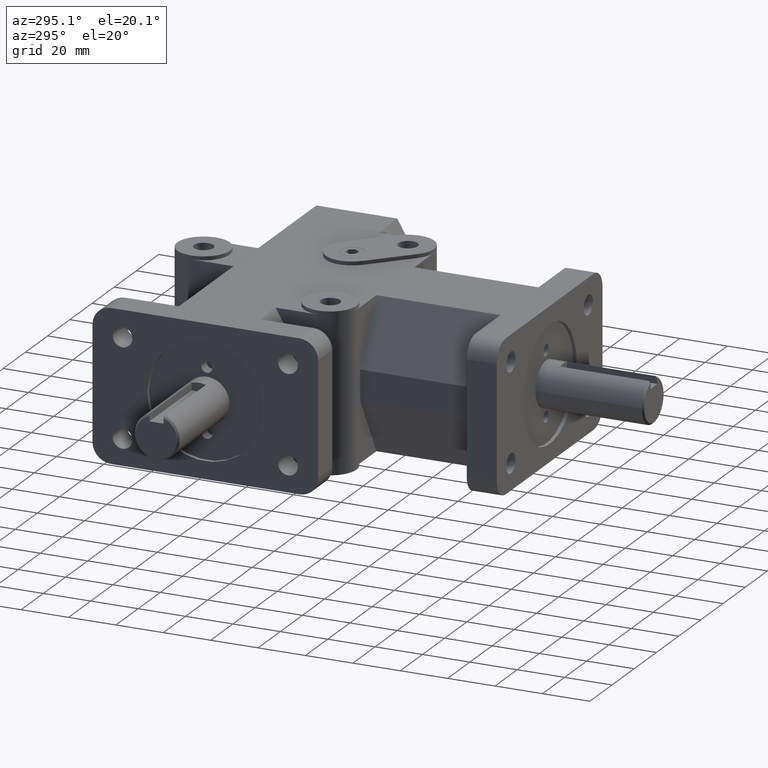
[diagram: clean part render]
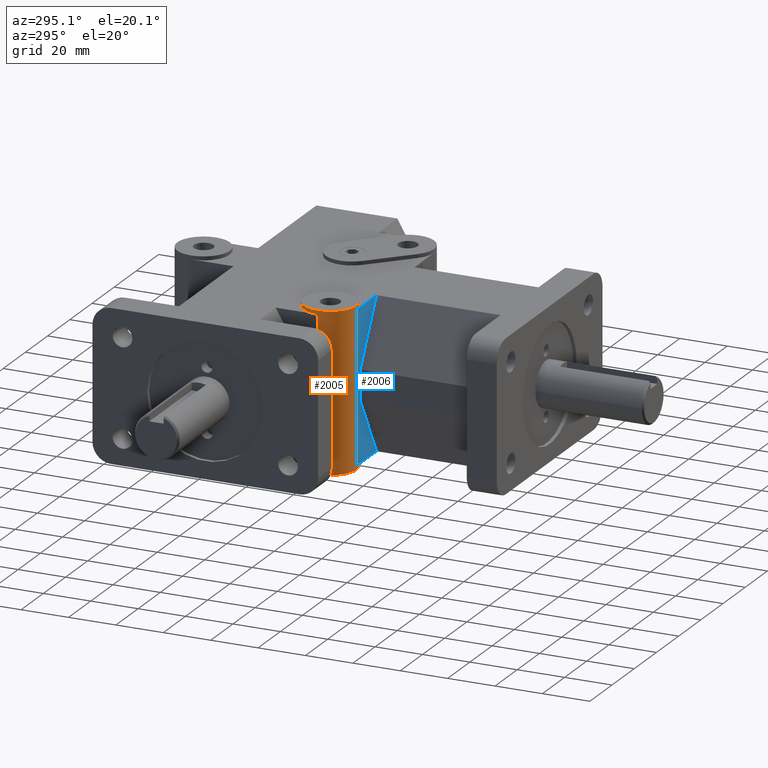
[diagram: same view with the hole feature highlighted: cylindrical wall and planar end face, labeled with their STEP entity ids]
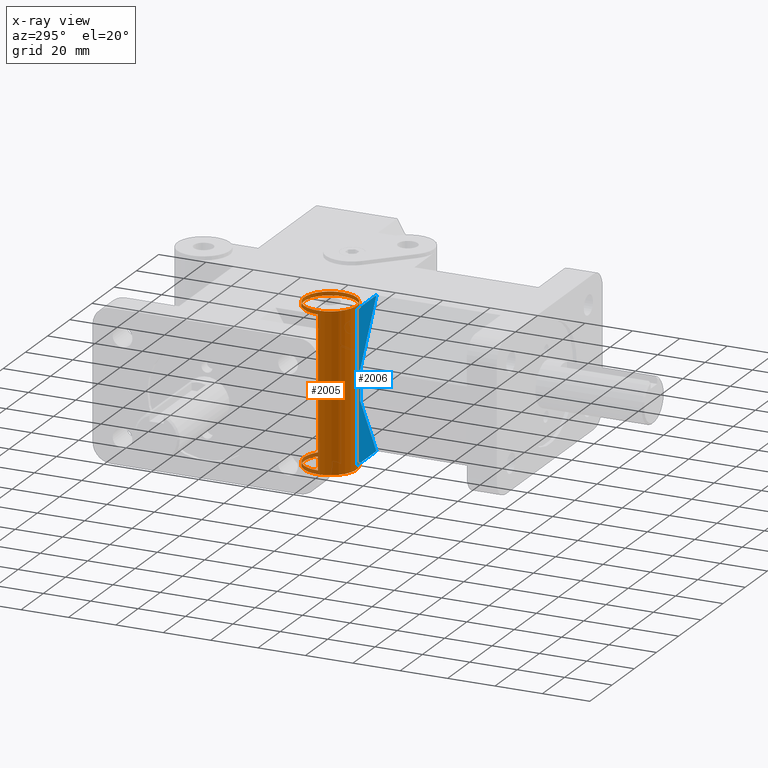
[diagram: x-ray of the same camera — body ghosted, the hole faces saturated]
A machine part, auxiliary view. The highlighted faces form one hole feature of diameter 22.225 mm: the cylindrical wall (entity #2005, orange) and its adjacent planar end face (entity #2006, blue) — they share a circular edge in the B-rep.
The next image is the same camera in x-ray (body ghosted, the hole faces saturated) — the bore reads through the body.
Wall:
#223=FACE_OUTER_BOUND('',#364,.T.);
#364=EDGE_LOOP('',(#1806,#1807,#1808,#1809,#1810,#1811,#1812,#1813,#1814,
#1815));
#565=LINE('',#3371,#756);
#566=LINE('',#3373,#757);
#567=LINE('',#3374,#758);
#568=LINE('',#3375,#759);
#756=VECTOR('',#2771,1.);
#757=VECTOR('',#2774,11.1125);
#758=VECTOR('',#2775,1.);
#759=VECTOR('',#2776,11.1125);
#820=CIRCLE('',#2126,11.1125);
#823=CIRCLE('',#2131,11.1125);
#844=CIRCLE('',#2181,11.1125);
#845=CIRCLE('',#2183,11.1125);
#952=VERTEX_POINT('',#3090);
#953=VERTEX_POINT('',#3092);
#963=VERTEX_POINT('',#3117);
#964=VERTEX_POINT('',#3119);
#1015=VERTEX_POINT('',#3280);
#1016=VERTEX_POINT('',#3283);
#1167=EDGE_CURVE('',#952,#953,#820,.T.);
#1181=EDGE_CURVE('',#963,#964,#823,.T.);
#1262=EDGE_CURVE('',#1015,#1015,#844,.T.);
#1263=EDGE_CURVE('',#1016,#1016,#845,.T.);
#1306=EDGE_CURVE('',#952,#964,#565,.T.);
#1307=EDGE_CURVE('',#1016,#964,#566,.T.);
#1308=EDGE_CURVE('',#953,#963,#567,.T.);
#1309=EDGE_CURVE('',#952,#1015,#568,.T.);
#1806=ORIENTED_EDGE('',*,*,#1263,.T.);
#1807=ORIENTED_EDGE('',*,*,#1307,.T.);
#1808=ORIENTED_EDGE('',*,*,#1181,.F.);
#1809=ORIENTED_EDGE('',*,*,#1308,.F.);
#1810=ORIENTED_EDGE('',*,*,#1167,.F.);
#1811=ORIENTED_EDGE('',*,*,#1309,.T.);
#1812=ORIENTED_EDGE('',*,*,#1262,.T.);
#1813=ORIENTED_EDGE('',*,*,#1309,.F.);
#1814=ORIENTED_EDGE('',*,*,#1306,.T.);
#1815=ORIENTED_EDGE('',*,*,#1307,.F.);
#1910=CYLINDRICAL_SURFACE('',#2214,11.1125);
#2005=ADVANCED_FACE('',(#223),#1910,.T.);
#2126=AXIS2_PLACEMENT_3D('',#3093,#2487,#2488);
#2131=AXIS2_PLACEMENT_3D('',#3120,#2508,#2509);
#2181=AXIS2_PLACEMENT_3D('',#3281,#2668,#2669);
#2183=AXIS2_PLACEMENT_3D('',#3284,#2672,#2673);
#2214=AXIS2_PLACEMENT_3D('',#3372,#2772,#2773);
#2487=DIRECTION('center_axis',(0.,0.,-1.));
#2488=DIRECTION('ref_axis',(1.,0.,0.));
#2508=DIRECTION('center_axis',(0.,0.,1.));
#2509=DIRECTION('ref_axis',(1.,0.,0.));
#2668=DIRECTION('center_axis',(0.,0.,-1.));
#2669=DIRECTION('ref_axis',(1.,0.,0.));
#2672=DIRECTION('center_axis',(0.,0.,1.));
#2673=DIRECTION('ref_axis',(1.,0.,0.));
#2771=DIRECTION('',(0.,0.,-1.));
#2772=DIRECTION('center_axis',(0.,0.,-1.));
#2773=DIRECTION('ref_axis',(1.,0.,0.));
#2774=DIRECTION('',(0.,0.,1.));
#2775=DIRECTION('',(0.,0.,-1.));
#2776=DIRECTION('',(0.,0.,1.));
#3090=CARTESIAN_POINT('',(-46.0375,76.2,31.75));
#3092=CARTESIAN_POINT('',(-34.925,65.0875,31.75));
#3093=CARTESIAN_POINT('Origin',(-34.925,76.2,31.75));
#3117=CARTESIAN_POINT('',(-34.925,65.0875,-31.75));
#3119=CARTESIAN_POINT('',(-46.0375,76.2,-31.75));
#3120=CARTESIAN_POINT('Origin',(-34.925,76.2,-31.75));
#3280=CARTESIAN_POINT('',(-46.0375,76.2,33.3375));
#3281=CARTESIAN_POINT('Origin',(-34.925,76.2,33.3375));
#3283=CARTESIAN_POINT('',(-46.0375,76.2,-33.3375));
#3284=CARTESIAN_POINT('Origin',(-34.925,76.2,-33.3375));
#3371=CARTESIAN_POINT('',(-46.0375,76.2,0.));
#3372=CARTESIAN_POINT('Origin',(-34.925,76.2,0.));
#3373=CARTESIAN_POINT('',(-46.0375,76.2,0.));
#3374=CARTESIAN_POINT('',(-34.925,65.0875,0.));
#3375=CARTESIAN_POINT('',(-46.0375,76.2,0.));
End face:
#114=PLANE('',#2215);
#224=FACE_OUTER_BOUND('',#365,.T.);
#365=EDGE_LOOP('',(#1816,#1817,#1818,#1819,#1820,#1821));
#457=LINE('',#3095,#648);
#467=LINE('',#3118,#658);
#544=LINE('',#3330,#735);
#546=LINE('',#3334,#737);
#567=LINE('',#3374,#758);
#569=LINE('',#3377,#760);
#648=VECTOR('',#2489,1.);
#658=VECTOR('',#2507,1.);
#735=VECTOR('',#2722,1.);
#737=VECTOR('',#2726,1.);
#758=VECTOR('',#2775,1.);
#760=VECTOR('',#2779,1.);
#953=VERTEX_POINT('',#3092);
#954=VERTEX_POINT('',#3094);
#962=VERTEX_POINT('',#3115);
#963=VERTEX_POINT('',#3117);
#1029=VERTEX_POINT('',#3329);
#1030=VERTEX_POINT('',#3333);
#1168=EDGE_CURVE('',#954,#953,#457,.T.);
#1180=EDGE_CURVE('',#963,#962,#467,.T.);
#1285=EDGE_CURVE('',#954,#1029,#544,.F.);
#1287=EDGE_CURVE('',#1030,#962,#546,.F.);
#1308=EDGE_CURVE('',#953,#963,#567,.T.);
#1310=EDGE_CURVE('',#1029,#1030,#569,.T.);
#1816=ORIENTED_EDGE('',*,*,#1180,.T.);
#1817=ORIENTED_EDGE('',*,*,#1287,.F.);
#1818=ORIENTED_EDGE('',*,*,#1310,.F.);
#1819=ORIENTED_EDGE('',*,*,#1285,.F.);
#1820=ORIENTED_EDGE('',*,*,#1168,.T.);
#1821=ORIENTED_EDGE('',*,*,#1308,.T.);
#2006=ADVANCED_FACE('',(#224),#114,.T.);
#2215=AXIS2_PLACEMENT_3D('',#3376,#2777,#2778);
#2489=DIRECTION('',(-1.,0.,0.));
#2507=DIRECTION('',(1.,0.,0.));
#2722=DIRECTION('',(0.499999825156179,0.,0.866025504730542));
#2726=DIRECTION('',(-0.499999825156179,0.,0.866025504730542));
#2775=DIRECTION('',(0.,0.,-1.));
#2777=DIRECTION('center_axis',(0.,-1.,0.));
#2778=DIRECTION('ref_axis',(0.,0.,1.));
#2779=DIRECTION('',(0.,0.,-1.));
#3092=CARTESIAN_POINT('',(-34.925,65.0875,31.75));
#3094=CARTESIAN_POINT('',(-17.08531,65.0875,31.75));
#3095=CARTESIAN_POINT('',(-31.75,65.0875,31.75));
#3115=CARTESIAN_POINT('',(-17.08531,65.0875,-31.75));
#3117=CARTESIAN_POINT('',(-34.925,65.0875,-31.75));
#3118=CARTESIAN_POINT('',(-17.4625,65.0875,-31.75));
#3329=CARTESIAN_POINT('',(-31.75,65.0875,6.35));
#3330=CARTESIAN_POINT('',(-29.8555172304392,65.0875,9.63134194086908));
#3333=CARTESIAN_POINT('',(-31.75,65.0875,-6.35));
#3334=CARTESIAN_POINT('',(-29.8555172304392,65.0875,-9.63134194086908));
#3374=CARTESIAN_POINT('',(-34.925,65.0875,0.));
#3376=CARTESIAN_POINT('Origin',(-34.925,65.0875,0.));
#3377=CARTESIAN_POINT('',(-31.75,65.0875,0.));